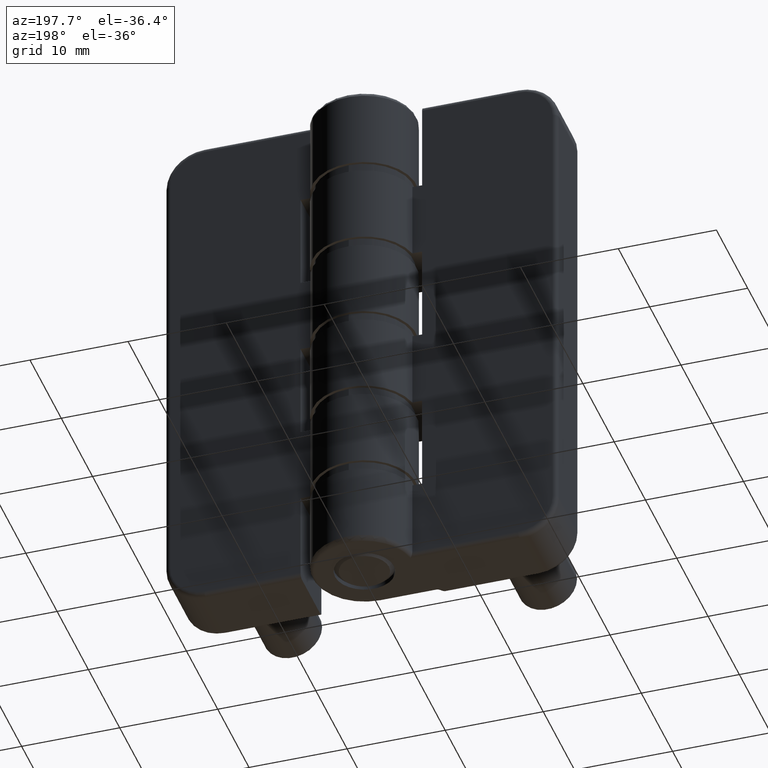
[diagram: clean part render]
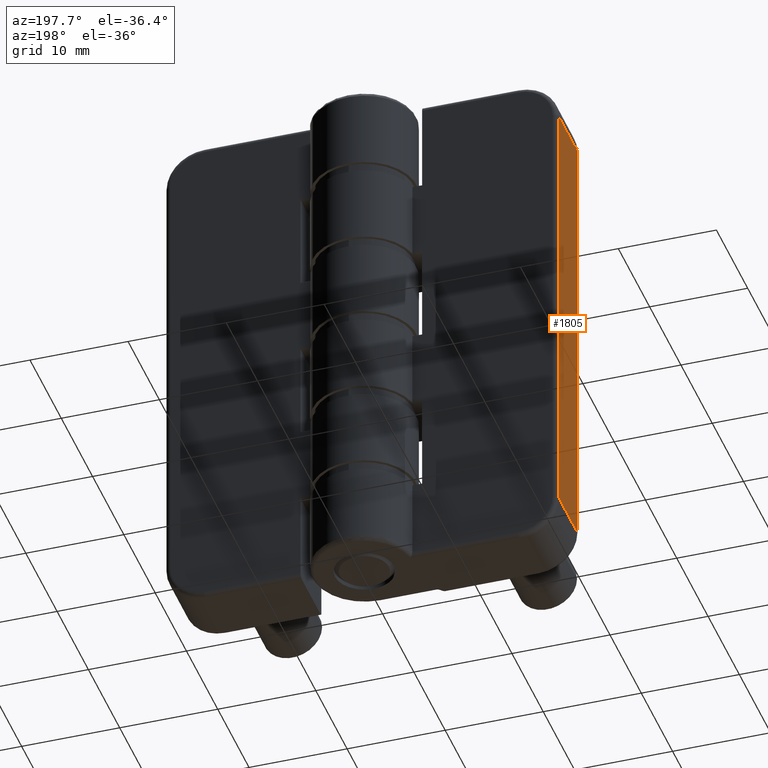
[diagram: same view with one face highlighted and labeled with its STEP entity id]
A machine part, auxiliary view. The second image highlights one B-rep face of the part: STEP entity #1805.
In plain terms, the highlighted planar face has unit normal (-1, -0, -0).
Its self-contained STEP definition (entity closure, byte-faithful):
#135=LINE('',#3272,#241);
#139=LINE('',#3285,#245);
#140=LINE('',#3289,#246);
#141=LINE('',#3290,#247);
#241=VECTOR('',#2479,46.);
#245=VECTOR('',#2493,5.8);
#246=VECTOR('',#2498,5.8);
#247=VECTOR('',#2499,46.);
#308=PLANE('',#2015);
#449=FACE_OUTER_BOUND('',#592,.T.);
#592=EDGE_LOOP('',(#1523,#1524,#1525,#1526));
#908=VERTEX_POINT('',#3266);
#909=VERTEX_POINT('',#3270);
#913=VERTEX_POINT('',#3284);
#914=VERTEX_POINT('',#3288);
#1126=EDGE_CURVE('',#909,#908,#135,.T.);
#1132=EDGE_CURVE('',#908,#913,#139,.T.);
#1134=EDGE_CURVE('',#914,#909,#140,.T.);
#1135=EDGE_CURVE('',#913,#914,#141,.T.);
#1523=ORIENTED_EDGE('',*,*,#1126,.F.);
#1524=ORIENTED_EDGE('',*,*,#1134,.F.);
#1525=ORIENTED_EDGE('',*,*,#1135,.F.);
#1526=ORIENTED_EDGE('',*,*,#1132,.F.);
#1805=ADVANCED_FACE('',(#449),#308,.T.);
#2015=AXIS2_PLACEMENT_3D('',#3287,#2496,#2497);
#2479=DIRECTION('',(0.,0.,1.));
#2493=DIRECTION('',(0.,1.,0.));
#2496=DIRECTION('center_axis',(1.,0.,0.));
#2497=DIRECTION('ref_axis',(0.,1.,0.));
#2498=DIRECTION('',(0.,-1.,0.));
#2499=DIRECTION('',(0.,0.,-1.));
#3266=CARTESIAN_POINT('',(20.,0.5,23.));
#3270=CARTESIAN_POINT('',(20.,0.500000000000002,-23.));
#3272=CARTESIAN_POINT('',(20.,0.500000000000002,0.));
#3284=CARTESIAN_POINT('',(20.,6.3,23.));
#3285=CARTESIAN_POINT('',(20.,1.825,23.));
#3287=CARTESIAN_POINT('Origin',(20.,1.94289029309402E-15,0.));
#3288=CARTESIAN_POINT('',(20.,6.3,-23.));
#3289=CARTESIAN_POINT('',(20.,1.825,-23.));
#3290=CARTESIAN_POINT('',(20.,6.3,0.));